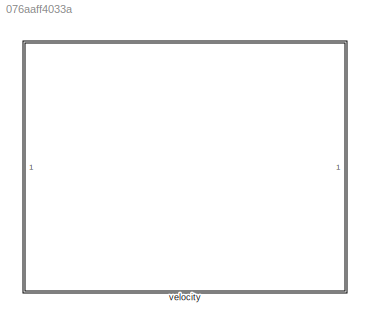
MODEL slx_076aaff4033a
KIND model
CONFIG AbsTol = auto
CONFIG EnableMultiTasking = off
CONFIG FixedStep = auto
CONFIG MaxStep = auto
CONFIG MinStep = auto
CONFIG RelTol = 1e-3
CONFIG SampleTimeConstraint = Unconstrained
CONFIG SolverName = VariableStepAuto
CONFIG StartTime = 0.0
CONFIG StopTime = 10.0
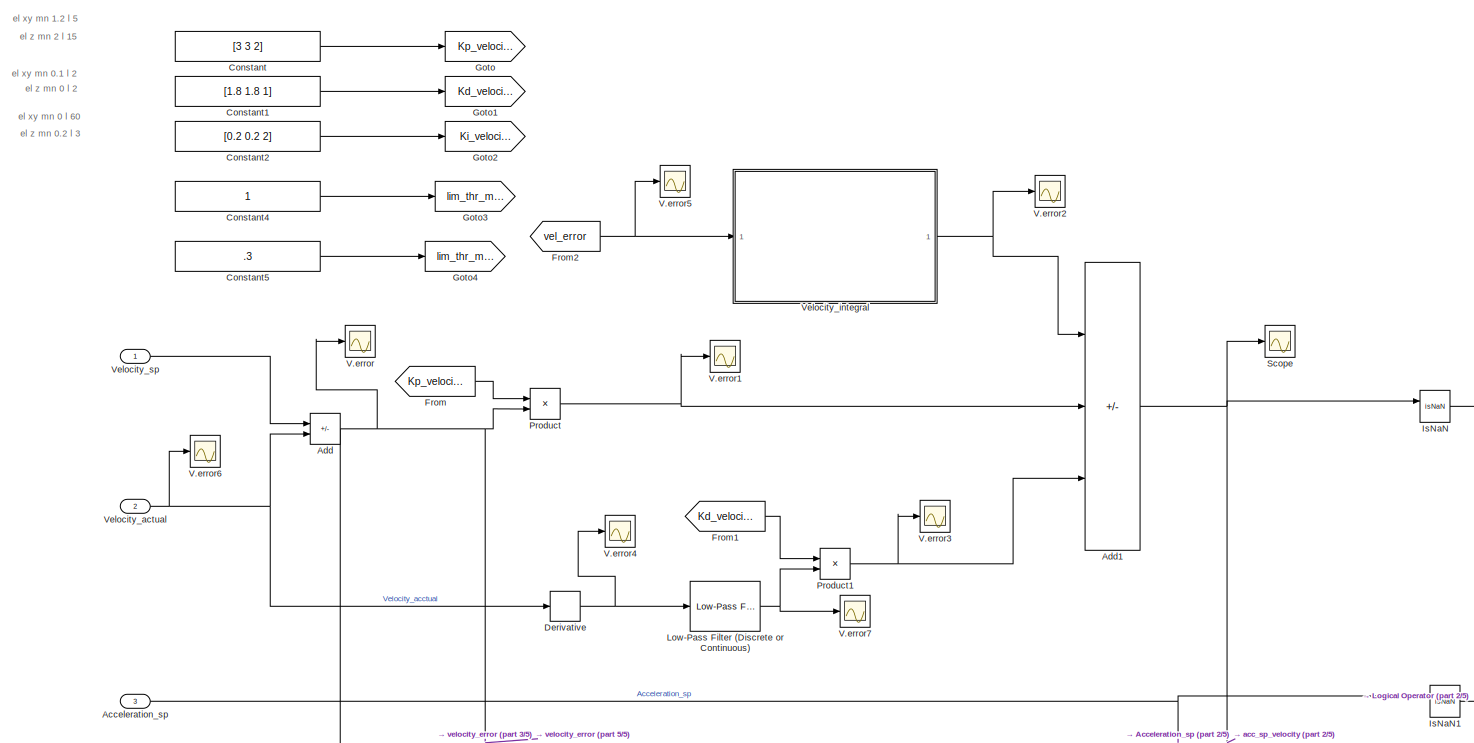
[diagram: velocity - part 1/5, top left region]
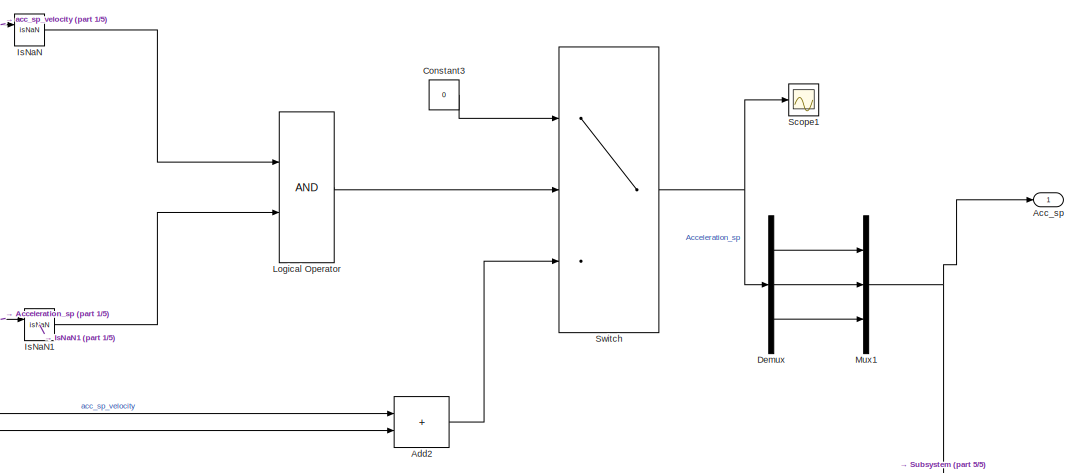
[diagram: velocity - part 2/5, middle right region]
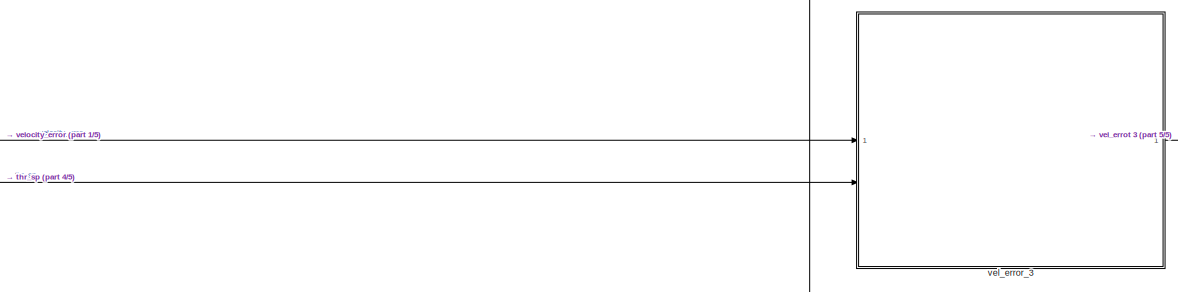
[diagram: velocity - part 3/5, central region]
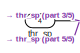
[diagram: velocity - part 4/5, bottom left region]
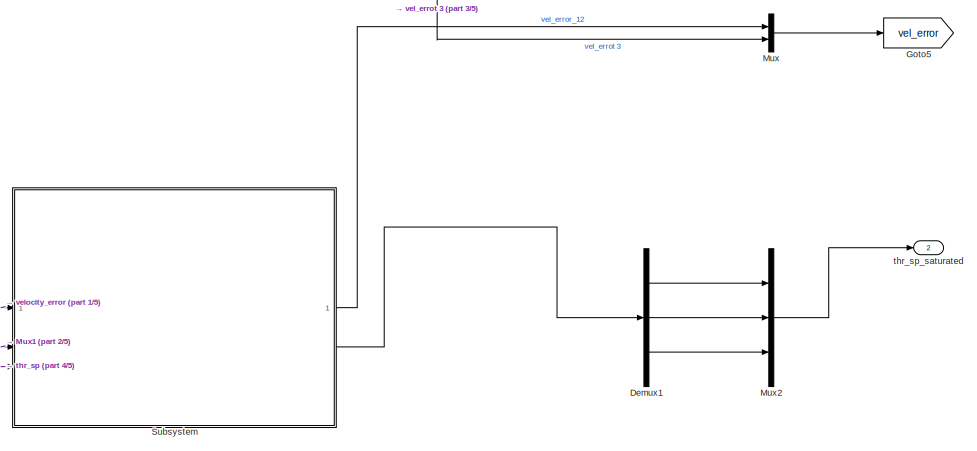
[diagram: velocity - part 5/5, bottom right region]
BLOCK [SubSystem] velocity
BLOCK [Outport] velocity/Acc_sp
BLOCK [Inport] velocity/Acceleration_sp
  Port = 3
BLOCK [Sum] velocity/Add
  IconShape = rectangular
  Inputs = +-
BLOCK [Sum] velocity/Add1
  IconShape = rectangular
  Inputs = ++-
BLOCK [Sum] velocity/Add2
  IconShape = rectangular
BLOCK [Constant] velocity/Constant
  Value = [3 3 2]
BLOCK [Constant] velocity/Constant1
  Value = [1.8 1.8 1]
BLOCK [Constant] velocity/Constant2
  Value = [0.2 0.2 2]
BLOCK [Constant] velocity/Constant3
  Value = 0
BLOCK [Constant] velocity/Constant4
BLOCK [Constant] velocity/Constant5
  Value = .3
BLOCK [Demux] velocity/Demux
  Outputs = 3
BLOCK [Demux] velocity/Demux1
  Outputs = 3
BLOCK [Derivative] velocity/Derivative
BLOCK [From] velocity/From
  GotoTag = Kp_velocity
  TagVisibility = global
BLOCK [From] velocity/From1
  GotoTag = Kd_velocity
  TagVisibility = global
BLOCK [From] velocity/From2
  GotoTag = vel_error
BLOCK [Goto] velocity/Goto
  GotoTag = Kp_velocity
  TagVisibility = global
BLOCK [Goto] velocity/Goto1
  GotoTag = Kd_velocity
  TagVisibility = global
BLOCK [Goto] velocity/Goto2
  GotoTag = Ki_velocity
  TagVisibility = global
BLOCK [Goto] velocity/Goto3
  GotoTag = lim_thr_max
  TagVisibility = global
BLOCK [Goto] velocity/Goto4
  GotoTag = lim_thr_margin
  TagVisibility = global
BLOCK [Goto] velocity/Goto5
  GotoTag = vel_error
BLOCK [RelationalOperator] velocity/IsNaN
  InputSameDT = off
  Operator = isNaN
  OutDataTypeStr = boolean
  RndMeth = Simplest
BLOCK [RelationalOperator] velocity/IsNaN1
  InputSameDT = off
  Operator = isNaN
  OutDataTypeStr = boolean
  RndMeth = Simplest
BLOCK [Logic] velocity/Logical Operator
  AllPortsSameDT = off
  OutDataTypeStr = boolean
BLOCK [Reference] velocity/Low-Pass Filter (Discrete or Continuous)  REF=eeGeneralControl/Low-Pass Filter
(Discrete or Continuous)
  SourceBlock = eeGeneralControl/Low-Pass Filter\n(Discrete or Continuous)
  SourceType = Low-Pass Filter (Discrete or Continuous)
BLOCK [Mux] velocity/Mux
  DisplayOption = bar
  Inputs = 2
BLOCK [Mux] velocity/Mux1
  DisplayOption = bar
  Inputs = 3
BLOCK [Mux] velocity/Mux2
  DisplayOption = bar
  Inputs = 3
BLOCK [Product] velocity/Product
BLOCK [Product] velocity/Product1
BLOCK [Scope] velocity/Scope
  Floating = off
  NumInputPorts = 1
  ScopeSpecificationString = Simulink.scopes.TimeScopeBlockCfg('CurrentConfiguration', extmgr.ConfigurationSet(extmgr.Configuration('Core','General UI',true),extmgr.Configuration('Core','Source UI',true),extmgr.Configuration('Sources','WiredSimulink',true,'DataLoggingVariableName','ScopeData7'),extmgr.Configuration('Visuals','Time Domain',true,'SerializedDisplays',{struct('MinYLimReal','-882.88599','MaxYLimReal','102.54289','...<+1430ch>
BLOCK [Scope] velocity/Scope1
  Floating = off
  NumInputPorts = 1
  ScopeSpecificationString = Simulink.scopes.TimeScopeBlockCfg('CurrentConfiguration', extmgr.ConfigurationSet(extmgr.Configuration('Core','General UI',true),extmgr.Configuration('Core','Source UI',true),extmgr.Configuration('Sources','WiredSimulink',true,'DataLoggingVariableName','ScopeData8'),extmgr.Configuration('Visuals','Time Domain',true,'SerializedDisplays',{struct('MinYLimReal','-882.88599','MaxYLimReal','102.54289','...<+1792ch>
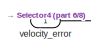
[diagram: velocity/Subsystem - part 1/8, top left region]
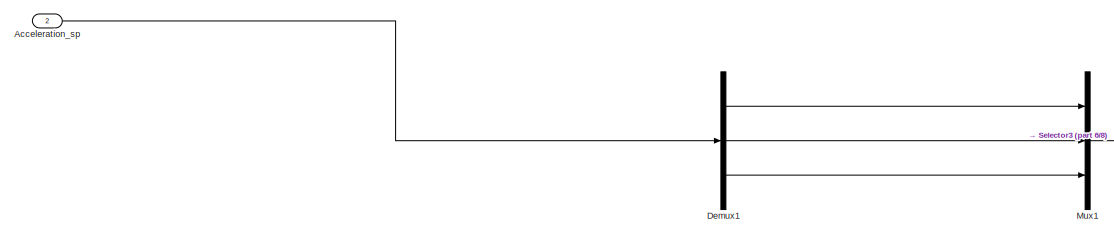
[diagram: velocity/Subsystem - part 2/8, top center region]
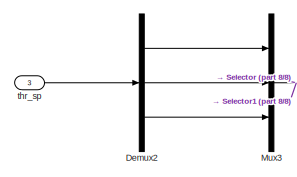
[diagram: velocity/Subsystem - part 3/8, middle left region]
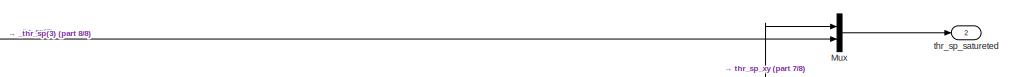
[diagram: velocity/Subsystem - part 4/8, middle right region]
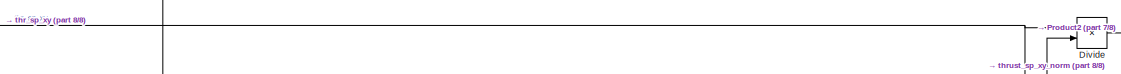
[diagram: velocity/Subsystem - part 5/8, central region]
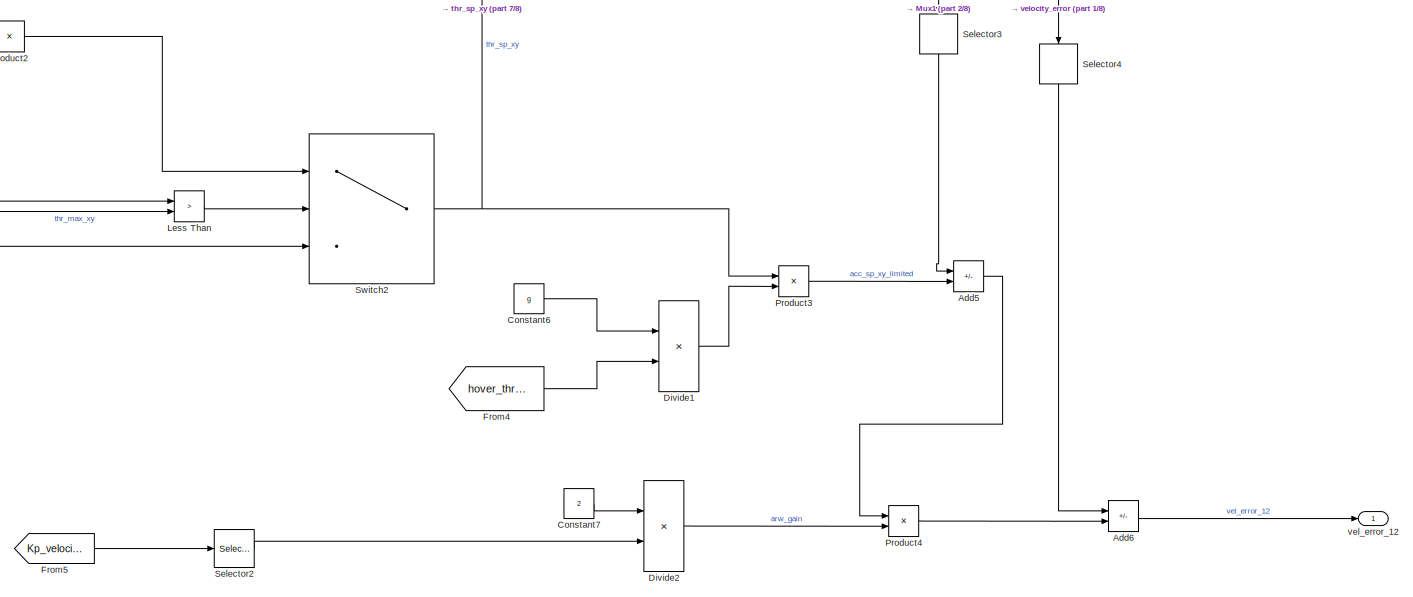
[diagram: velocity/Subsystem - part 6/8, bottom right region]
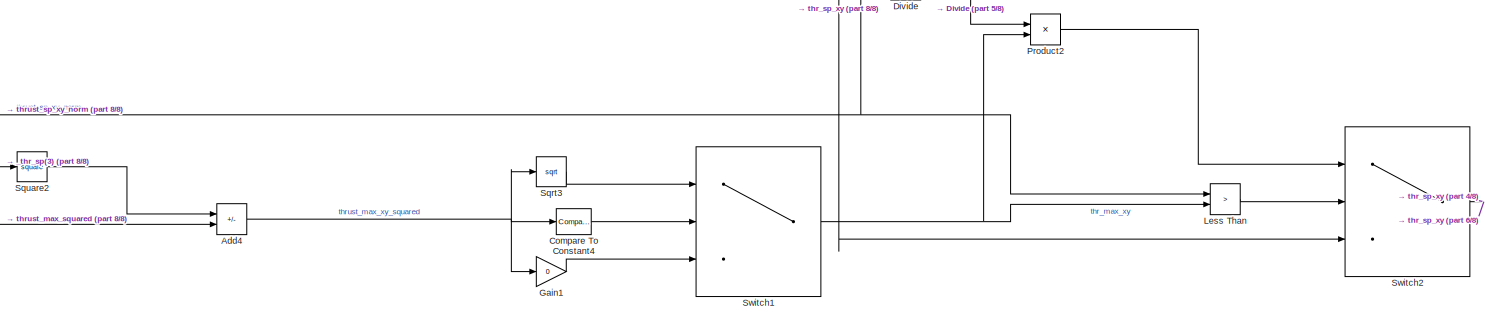
[diagram: velocity/Subsystem - part 7/8, bottom center region]
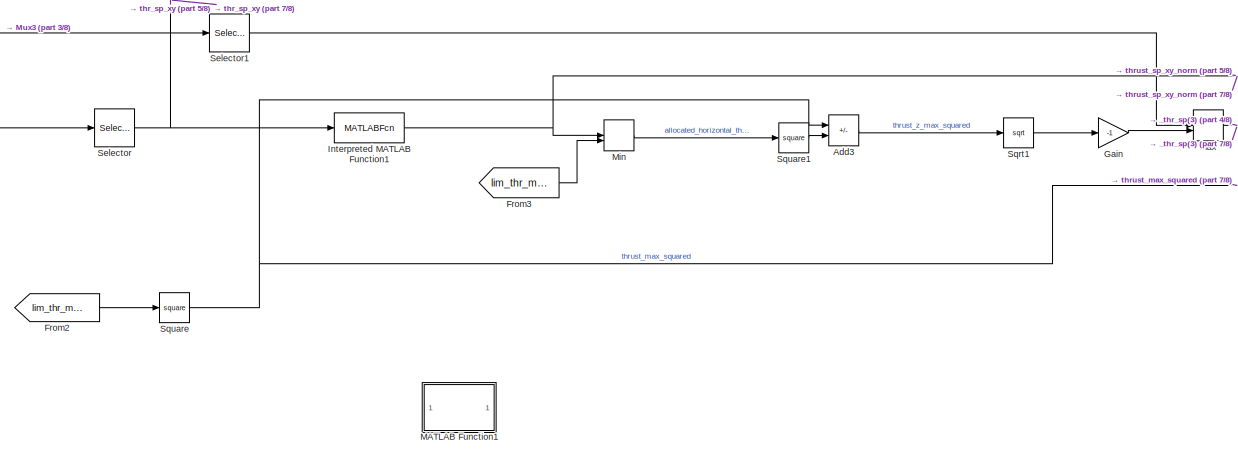
[diagram: velocity/Subsystem - part 8/8, bottom left region]
BLOCK [SubSystem] velocity/Subsystem
BLOCK [Inport] velocity/Subsystem/Acceleration_sp
  Port = 2
BLOCK [Sum] velocity/Subsystem/Add3
  IconShape = rectangular
  Inputs = +-
BLOCK [Sum] velocity/Subsystem/Add4
  IconShape = rectangular
  Inputs = -+
BLOCK [Sum] velocity/Subsystem/Add5
  IconShape = rectangular
  Inputs = +-
BLOCK [Sum] velocity/Subsystem/Add6
  IconShape = rectangular
  Inputs = +-
BLOCK [Reference] velocity/Subsystem/Compare To Constant4  REF=simulink/Logic and Bit
Operations/Compare
To Constant
  SourceBlock = simulink/Logic and Bit\nOperations/Compare\nTo Constant
  SourceType = Compare To Constant
BLOCK [Constant] velocity/Subsystem/Constant6
  Value = g
BLOCK [Constant] velocity/Subsystem/Constant7
  Value = 2
BLOCK [Demux] velocity/Subsystem/Demux1
  Outputs = 3
BLOCK [Demux] velocity/Subsystem/Demux2
  Outputs = 3
BLOCK [Product] velocity/Subsystem/Divide
  Inputs = */
BLOCK [Product] velocity/Subsystem/Divide1
  Inputs = */
BLOCK [Product] velocity/Subsystem/Divide2
  Inputs = */
BLOCK [From] velocity/Subsystem/From2
  GotoTag = lim_thr_max
  TagVisibility = global
BLOCK [From] velocity/Subsystem/From3
  GotoTag = lim_thr_margin
  TagVisibility = global
BLOCK [From] velocity/Subsystem/From4
  GotoTag = hover_thrust
  TagVisibility = global
BLOCK [From] velocity/Subsystem/From5
  GotoTag = Kp_velocity
  TagVisibility = global
BLOCK [Gain] velocity/Subsystem/Gain
  Gain = -1
BLOCK [Gain] velocity/Subsystem/Gain1
  Gain = 0
BLOCK [MATLABFcn] velocity/Subsystem/Interpreted MATLAB Function1
  MATLABFcn = norm
BLOCK [RelationalOperator] velocity/Subsystem/Less Than
  InputSameDT = off
  Operator = >
  OutDataTypeStr = boolean
  RndMeth = Simplest
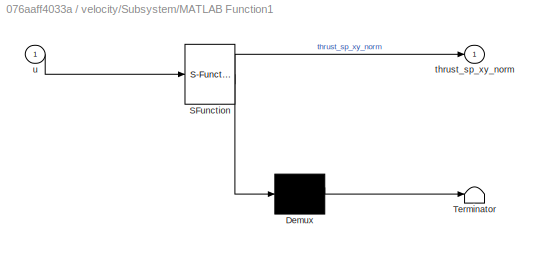
BLOCK [SubSystem] velocity/Subsystem/MATLAB Function1
  Commented = on
  ErrorFcn = Stateflow.Translate.translate
  PermitHierarchicalResolution = ExplicitOnly
  SFBlockType = MATLAB Function
  TreatAsAtomicUnit = on
BLOCK [Demux] velocity/Subsystem/MATLAB Function1/ Demux 
  Outputs = 1
BLOCK [S-Function] velocity/Subsystem/MATLAB Function1/ SFunction 
  EnableBusSupport = on
  FunctionName = sf_sfun
  PortCounts = [1 2]
  SFcnIsStateOwnerBlock = off
  SFunctionDeploymentMode = off
  Tag = Stateflow S-Function 19
BLOCK [Terminator] velocity/Subsystem/MATLAB Function1/ Terminator 
BLOCK [Outport] velocity/Subsystem/MATLAB Function1/thrust_sp_xy_norm
BLOCK [Inport] velocity/Subsystem/MATLAB Function1/u
BLOCK [MinMax] velocity/Subsystem/Max
  Function = max
  Inputs = 2
BLOCK [MinMax] velocity/Subsystem/Min
  Inputs = 2
BLOCK [Mux] velocity/Subsystem/Mux
  DisplayOption = bar
  Inputs = 2
BLOCK [Mux] velocity/Subsystem/Mux1
  DisplayOption = bar
  Inputs = 3
BLOCK [Mux] velocity/Subsystem/Mux3
  DisplayOption = bar
  Inputs = 3
BLOCK [Product] velocity/Subsystem/Product2
BLOCK [Product] velocity/Subsystem/Product3
BLOCK [Product] velocity/Subsystem/Product4
BLOCK [Selector] velocity/Subsystem/Selector
  IndexOptions = Index vector (dialog)
  Indices = [1 2]
  InputPortWidth = 3
  OutputSizes = 1
BLOCK [Selector] velocity/Subsystem/Selector1
  IndexOptions = Index vector (dialog)
  Indices = [3]
  InputPortWidth = 3
  OutputSizes = 1
BLOCK [Selector] velocity/Subsystem/Selector2
  IndexOptions = Index vector (dialog)
  Indices = [1]
  InputPortWidth = 3
  OutputSizes = 1
BLOCK [Selector] velocity/Subsystem/Selector3
  IndexOptions = Index vector (dialog)
  Indices = [1 2]
  InputPortWidth = 3
  NameLocation = left
  OutputSizes = 1
BLOCK [Selector] velocity/Subsystem/Selector4
  IndexOptions = Index vector (dialog)
  Indices = [1 2]
  InputPortWidth = 3
  NameLocation = left
  OutputSizes = 1
BLOCK [Sqrt] velocity/Subsystem/Sqrt1
BLOCK [Sqrt] velocity/Subsystem/Sqrt3
BLOCK [Math] velocity/Subsystem/Square
  Operator = square
BLOCK [Math] velocity/Subsystem/Square1
  Operator = square
BLOCK [Math] velocity/Subsystem/Square2
  Operator = square
BLOCK [Switch] velocity/Subsystem/Switch1
  Criteria = u2 ~= 0
  InputSameDT = off
  SaturateOnIntegerOverflow = off
  Threshold = ~0
BLOCK [Switch] velocity/Subsystem/Switch2
  Criteria = u2 ~= 0
  InputSameDT = off
  SaturateOnIntegerOverflow = off
  Threshold = ~0
BLOCK [Inport] velocity/Subsystem/thr_sp
  Port = 3
BLOCK [Outport] velocity/Subsystem/thr_sp_satureted
  Port = 2
BLOCK [Outport] velocity/Subsystem/vel_error_12
BLOCK [Inport] velocity/Subsystem/velocity_error
BLOCK [Switch] velocity/Switch
  Criteria = u2 ~= 0
  InputSameDT = off
  SaturateOnIntegerOverflow = off
BLOCK [Scope] velocity/V.error
  Floating = off
  NumInputPorts = 1
  ScopeSpecificationString = Simulink.scopes.TimeScopeBlockCfg('CurrentConfiguration', extmgr.ConfigurationSet(extmgr.Configuration('Core','General UI',true),extmgr.Configuration('Core','Source UI',true),extmgr.Configuration('Sources','WiredSimulink',true,'DataLoggingVariableName','ScopeData1'),extmgr.Configuration('Visuals','Time Domain',true,'SerializedDisplays',{struct('MinYLimReal','-885.83605','MaxYLimReal','98.42623','Y...<+1814ch>
BLOCK [Scope] velocity/V.error1
  Floating = off
  NumInputPorts = 1
  ScopeSpecificationString = Simulink.scopes.TimeScopeBlockCfg('CurrentConfiguration', extmgr.ConfigurationSet(extmgr.Configuration('Core','General UI',true),extmgr.Configuration('Core','Source UI',true),extmgr.Configuration('Sources','WiredSimulink',true,'DataLoggingVariableName','ScopeData2'),extmgr.Configuration('Visuals','Time Domain',true,'SerializedDisplays',{struct('MinYLimReal','-15.50424','MaxYLimReal','5.84529','YLa...<+1742ch>
BLOCK [Scope] velocity/V.error2
  Floating = off
  NumInputPorts = 1
  ScopeSpecificationString = Simulink.scopes.TimeScopeBlockCfg('CurrentConfiguration', extmgr.ConfigurationSet(extmgr.Configuration('Core','General UI',true),extmgr.Configuration('Core','Source UI',true),extmgr.Configuration('Sources','WiredSimulink',true,'DataLoggingVariableName','ScopeData3'),extmgr.Configuration('Visuals','Time Domain',true,'SerializedDisplays',{struct('MinYLimReal','-0.79336','MaxYLimReal','0.21438','YLab...<+1765ch>
BLOCK [Scope] velocity/V.error3
  Floating = off
  NumInputPorts = 1
  ScopeSpecificationString = Simulink.scopes.TimeScopeBlockCfg('CurrentConfiguration', extmgr.ConfigurationSet(extmgr.Configuration('Core','General UI',true),extmgr.Configuration('Core','Source UI',true),extmgr.Configuration('Sources','WiredSimulink',true,'DataLoggingVariableName','ScopeData4'),extmgr.Configuration('Visuals','Time Domain',true,'SerializedDisplays',{struct('MinYLimReal','-0.0000000000027','MaxYLimReal','0.0000...<+1820ch>
BLOCK [Scope] velocity/V.error4
  Floating = off
  NumInputPorts = 1
  ScopeSpecificationString = Simulink.scopes.TimeScopeBlockCfg('CurrentConfiguration', extmgr.ConfigurationSet(extmgr.Configuration('Core','General UI',true),extmgr.Configuration('Core','Source UI',true),extmgr.Configuration('Sources','WiredSimulink',true,'DataLoggingVariableName','ScopeData5'),extmgr.Configuration('Visuals','Time Domain',true,'SerializedDisplays',{struct('MinYLimReal','-0.98469','MaxYLimReal','8.86218','YLab...<+1742ch>
BLOCK [Scope] velocity/V.error5
  Floating = off
  NumInputPorts = 1
  ScopeSpecificationString = Simulink.scopes.TimeScopeBlockCfg('CurrentConfiguration', extmgr.ConfigurationSet(extmgr.Configuration('Core','General UI',true),extmgr.Configuration('Core','Source UI',true),extmgr.Configuration('Sources','WiredSimulink',true,'DataLoggingVariableName','ScopeData6'),extmgr.Configuration('Visuals','Time Domain',true),extmgr.Configuration('Tools','Plot Navigation',true),extmgr.Configuration('Tools',...<+40ch>
BLOCK [Scope] velocity/V.error6
  Floating = off
  NumInputPorts = 1
  ScopeSpecificationString = Simulink.scopes.TimeScopeBlockCfg('CurrentConfiguration', extmgr.ConfigurationSet(extmgr.Configuration('Core','General UI',true),extmgr.Configuration('Core','Source UI',true),extmgr.Configuration('Sources','WiredSimulink',true,'DataLoggingVariableName','ScopeData31'),extmgr.Configuration('Visuals','Time Domain',true,'SerializedDisplays',{struct('MinYLimReal','-1.96627','MaxYLimReal','17.69647','YL...<+3109ch>
BLOCK [Scope] velocity/V.error7
  Floating = off
  NumInputPorts = 1
  ScopeSpecificationString = Simulink.scopes.TimeScopeBlockCfg('CurrentConfiguration', extmgr.ConfigurationSet(extmgr.Configuration('Core','General UI',true),extmgr.Configuration('Core','Source UI',true),extmgr.Configuration('Sources','WiredSimulink',true,'DataLoggingVariableName','ScopeData32'),extmgr.Configuration('Visuals','Time Domain',true,'SerializedDisplays',{struct('MinYLimReal','-0.90721','MaxYLimReal','8.16489','YLa...<+1825ch>
BLOCK [Inport] velocity/Velocity_actual
  Port = 2
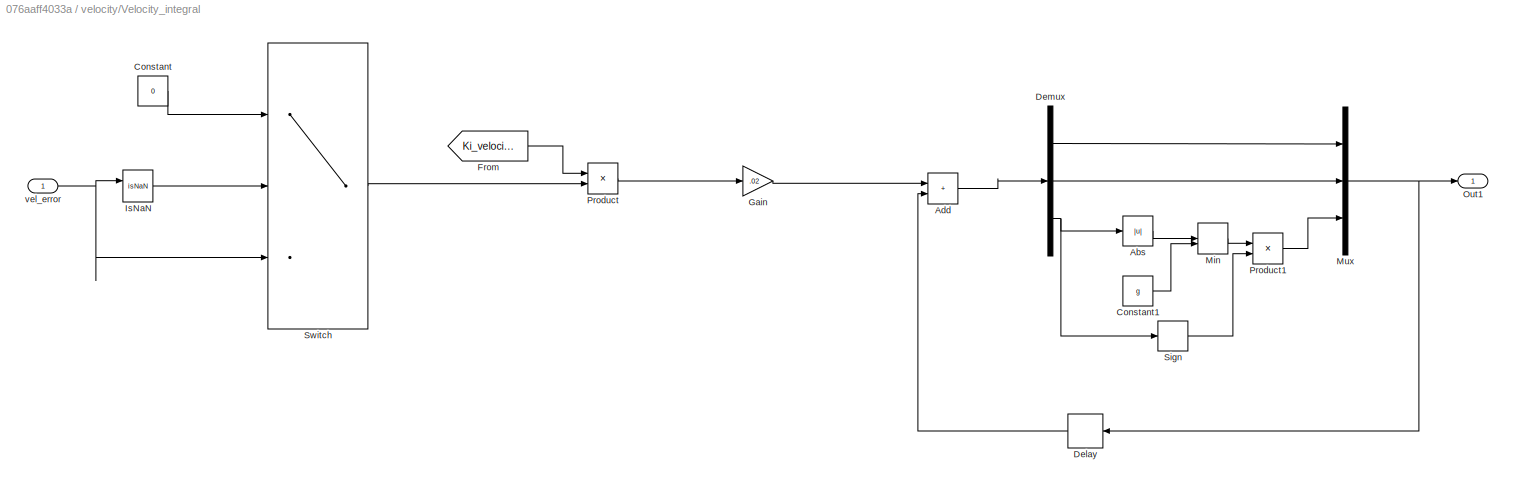
BLOCK [SubSystem] velocity/Velocity_integral
BLOCK [Abs] velocity/Velocity_integral/Abs
  SaturateOnIntegerOverflow = off
BLOCK [Sum] velocity/Velocity_integral/Add
  IconShape = rectangular
BLOCK [Constant] velocity/Velocity_integral/Constant
  Value = 0
BLOCK [Constant] velocity/Velocity_integral/Constant1
  Value = g
BLOCK [Delay] velocity/Velocity_integral/Delay
  DelayLength = 1
  InputPortMap = u0
  NameLocation = top
BLOCK [Demux] velocity/Velocity_integral/Demux
  Outputs = 3
BLOCK [From] velocity/Velocity_integral/From
  GotoTag = Ki_velocity
  TagVisibility = global
BLOCK [Gain] velocity/Velocity_integral/Gain
  Gain = .02
BLOCK [RelationalOperator] velocity/Velocity_integral/IsNaN
  InputSameDT = off
  Operator = isNaN
  OutDataTypeStr = boolean
  RndMeth = Simplest
BLOCK [MinMax] velocity/Velocity_integral/Min
  Inputs = 2
BLOCK [Mux] velocity/Velocity_integral/Mux
  DisplayOption = bar
  Inputs = 3
BLOCK [Outport] velocity/Velocity_integral/Out1
BLOCK [Product] velocity/Velocity_integral/Product
BLOCK [Product] velocity/Velocity_integral/Product1
BLOCK [Signum] velocity/Velocity_integral/Sign
BLOCK [Switch] velocity/Velocity_integral/Switch
  Criteria = u2 ~= 0
  InputSameDT = off
  SaturateOnIntegerOverflow = off
BLOCK [Inport] velocity/Velocity_integral/vel_error
BLOCK [Inport] velocity/Velocity_sp
BLOCK [Inport] velocity/thr_sp
  Port = 4
BLOCK [Outport] velocity/thr_sp_saturated
  Port = 2
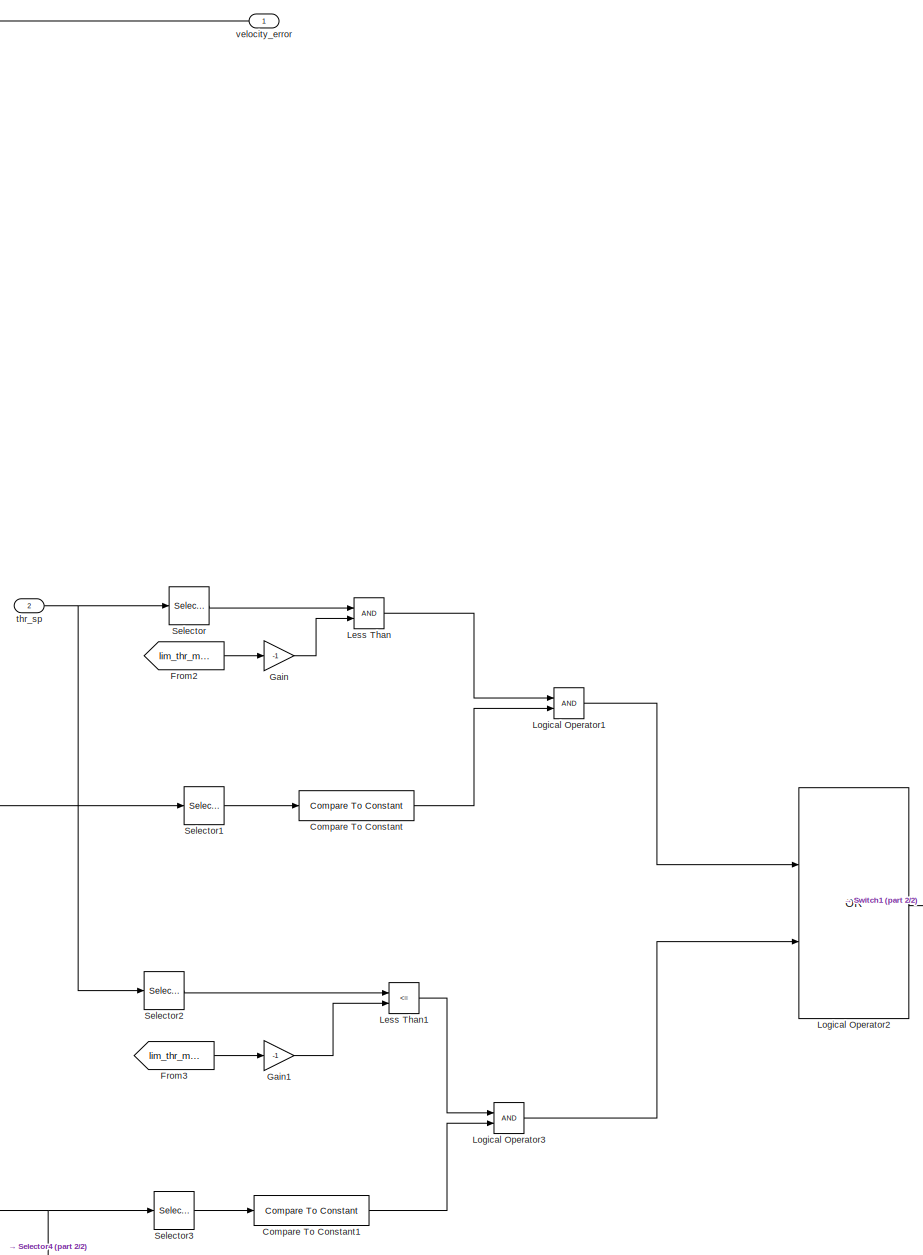
[diagram: velocity/vel_error_3 - part 1/2, left side, full height]
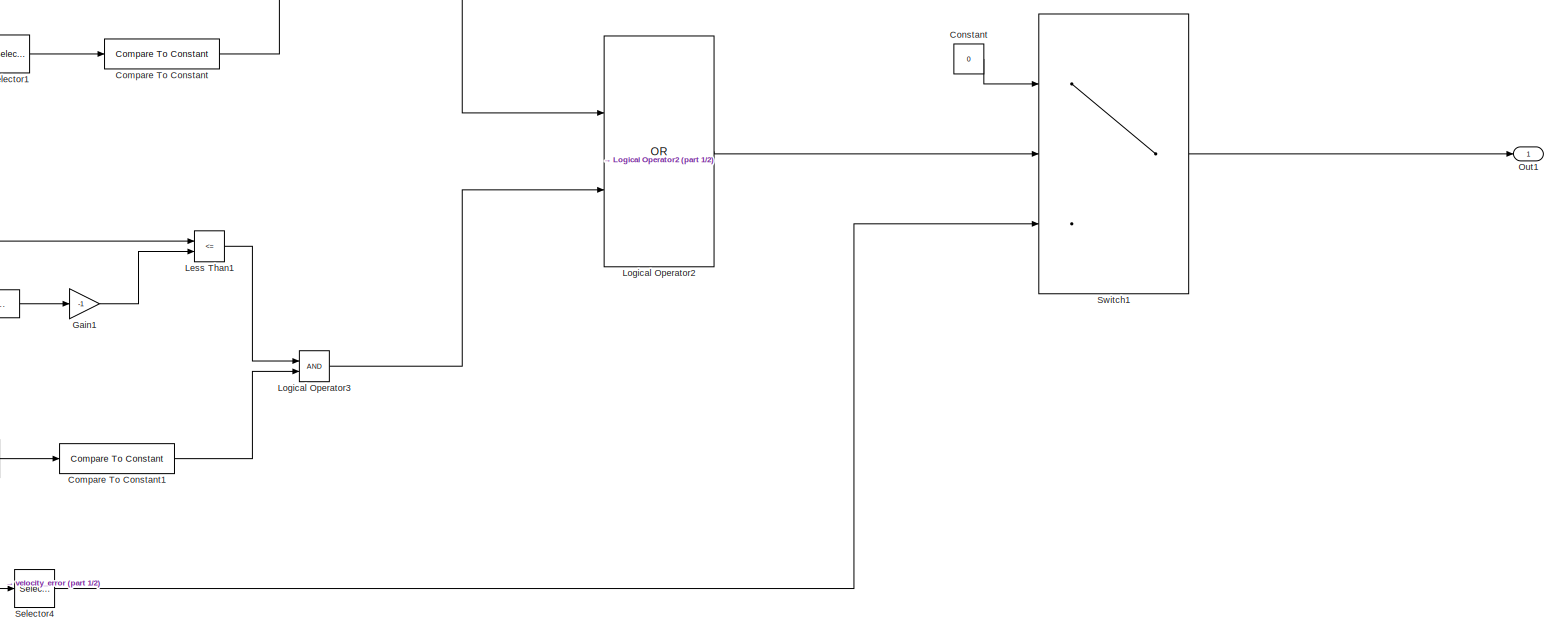
[diagram: velocity/vel_error_3 - part 2/2, full width, bottom band]
BLOCK [SubSystem] velocity/vel_error_3
BLOCK [Reference] velocity/vel_error_3/Compare To Constant  REF=simulink/Logic and Bit
Operations/Compare
To Constant
  SourceBlock = simulink/Logic and Bit\nOperations/Compare\nTo Constant
  SourceType = Compare To Constant
BLOCK [Reference] velocity/vel_error_3/Compare To Constant1  REF=simulink/Logic and Bit
Operations/Compare
To Constant
  SourceBlock = simulink/Logic and Bit\nOperations/Compare\nTo Constant
  SourceType = Compare To Constant
BLOCK [Constant] velocity/vel_error_3/Constant
  Value = 0
BLOCK [From] velocity/vel_error_3/From2
  GotoTag = lim_thr_min
  TagVisibility = global
BLOCK [From] velocity/vel_error_3/From3
  GotoTag = lim_thr_max
  TagVisibility = global
BLOCK [Gain] velocity/vel_error_3/Gain
  Gain = -1
BLOCK [Gain] velocity/vel_error_3/Gain1
  Gain = -1
BLOCK [RelationalOperator] velocity/vel_error_3/Less Than
  InputSameDT = off
  OutDataTypeStr = boolean
  RndMeth = Simplest
BLOCK [RelationalOperator] velocity/vel_error_3/Less Than1
  InputSameDT = off
  Operator = <=
  OutDataTypeStr = boolean
  RndMeth = Simplest
BLOCK [Logic] velocity/vel_error_3/Logical Operator1
  AllPortsSameDT = off
  OutDataTypeStr = boolean
BLOCK [Logic] velocity/vel_error_3/Logical Operator2
  AllPortsSameDT = off
  Operator = OR
  OutDataTypeStr = boolean
BLOCK [Logic] velocity/vel_error_3/Logical Operator3
  AllPortsSameDT = off
  OutDataTypeStr = boolean
BLOCK [Outport] velocity/vel_error_3/Out1
BLOCK [Selector] velocity/vel_error_3/Selector
  IndexOptions = Index vector (dialog)
  Indices = [3]
  InputPortWidth = 3
  OutputSizes = 1
BLOCK [Selector] velocity/vel_error_3/Selector1
  IndexOptions = Index vector (dialog)
  Indices = [3]
  InputPortWidth = 3
  OutputSizes = 1
BLOCK [Selector] velocity/vel_error_3/Selector2
  IndexOptions = Index vector (dialog)
  Indices = [3]
  InputPortWidth = 3
  OutputSizes = 1
BLOCK [Selector] velocity/vel_error_3/Selector3
  IndexOptions = Index vector (dialog)
  Indices = [3]
  InputPortWidth = 3
  OutputSizes = 1
BLOCK [Selector] velocity/vel_error_3/Selector4
  IndexOptions = Index vector (dialog)
  Indices = [3]
  InputPortWidth = 3
  OutputSizes = 1
BLOCK [Switch] velocity/vel_error_3/Switch1
  Criteria = u2 > Threshold
  InputSameDT = off
  SaturateOnIntegerOverflow = off
BLOCK [Inport] velocity/vel_error_3/thr_sp
  Port = 2
BLOCK [Inport] velocity/vel_error_3/velocity_error
ANNOTATION velocity: el xy mn 0 l 60
ANNOTATION velocity: el xy mn 0.1 l 2
ANNOTATION velocity: el xy mn 1.2 l 5
ANNOTATION velocity: el z mn 0 l 2
ANNOTATION velocity: el z mn 0.2 l 3
ANNOTATION velocity: el z mn 2 l 15
NET velocity/Acceleration_sp:1 -> velocity/Add2:2, velocity/IsNaN1:1
NET velocity/Add1:1 -> velocity/Add2:1, velocity/IsNaN:1, velocity/Scope:1
LINE velocity/Add2:1 -> velocity/Switch:3
NET velocity/Add:1 -> velocity/Product:2, velocity/Subsystem:1, velocity/V.error:1, velocity/vel_error_3:1
LINE velocity/Constant1:1 -> velocity/Goto1:1
LINE velocity/Constant2:1 -> velocity/Goto2:1
LINE velocity/Constant3:1 -> velocity/Switch:1
LINE velocity/Constant4:1 -> velocity/Goto3:1
LINE velocity/Constant5:1 -> velocity/Goto4:1
LINE velocity/Constant:1 -> velocity/Goto:1
LINE velocity/Demux1:1 -> velocity/Mux2:1
LINE velocity/Demux1:2 -> velocity/Mux2:2
LINE velocity/Demux1:3 -> velocity/Mux2:3
LINE velocity/Demux:1 -> velocity/Mux1:1
LINE velocity/Demux:2 -> velocity/Mux1:2
LINE velocity/Demux:3 -> velocity/Mux1:3
NET velocity/Derivative:1 -> velocity/Low-Pass Filter (Discrete or Continuous):1, velocity/V.error4:1
LINE velocity/From1:1 -> velocity/Product1:1
NET velocity/From2:1 -> velocity/V.error5:1, velocity/Velocity_integral:1
LINE velocity/From:1 -> velocity/Product:1
LINE velocity/IsNaN1:1 -> velocity/Logical Operator:2
LINE velocity/IsNaN:1 -> velocity/Logical Operator:1
LINE velocity/Logical Operator:1 -> velocity/Switch:2
NET velocity/Low-Pass Filter (Discrete or Continuous):1 -> velocity/Product1:2, velocity/V.error7:1
NET velocity/Mux1:1 -> velocity/Acc_sp:1, velocity/Subsystem:2
LINE velocity/Mux2:1 -> velocity/thr_sp_saturated:1
LINE velocity/Mux:1 -> velocity/Goto5:1
NET velocity/Product1:1 -> velocity/Add1:3, velocity/V.error3:1
NET velocity/Product:1 -> velocity/Add1:2, velocity/V.error1:1
LINE velocity/Subsystem/Acceleration_sp:1 -> velocity/Subsystem/Demux1:1
LINE velocity/Subsystem/Add3:1 -> velocity/Subsystem/Sqrt1:1
NET velocity/Subsystem/Add4:1 -> velocity/Subsystem/Compare To Constant4:1, velocity/Subsystem/Gain1:1, velocity/Subsystem/Sqrt3:1
LINE velocity/Subsystem/Add5:1 -> velocity/Subsystem/Product4:1
LINE velocity/Subsystem/Add6:1 -> velocity/Subsystem/vel_error_12:1
LINE velocity/Subsystem/Compare To Constant4:1 -> velocity/Subsystem/Switch1:2
LINE velocity/Subsystem/Constant6:1 -> velocity/Subsystem/Divide1:1
LINE velocity/Subsystem/Constant7:1 -> velocity/Subsystem/Divide2:1
LINE velocity/Subsystem/Demux1:1 -> velocity/Subsystem/Mux1:1
LINE velocity/Subsystem/Demux1:2 -> velocity/Subsystem/Mux1:2
LINE velocity/Subsystem/Demux1:3 -> velocity/Subsystem/Mux1:3
LINE velocity/Subsystem/Demux2:1 -> velocity/Subsystem/Mux3:1
LINE velocity/Subsystem/Demux2:2 -> velocity/Subsystem/Mux3:2
LINE velocity/Subsystem/Demux2:3 -> velocity/Subsystem/Mux3:3
LINE velocity/Subsystem/Divide1:1 -> velocity/Subsystem/Product3:2
LINE velocity/Subsystem/Divide2:1 -> velocity/Subsystem/Product4:2
LINE velocity/Subsystem/Divide:1 -> velocity/Subsystem/Product2:1
LINE velocity/Subsystem/From2:1 -> velocity/Subsystem/Square:1
LINE velocity/Subsystem/From3:1 -> velocity/Subsystem/Min:2
LINE velocity/Subsystem/From4:1 -> velocity/Subsystem/Divide1:2
LINE velocity/Subsystem/From5:1 -> velocity/Subsystem/Selector2:1
LINE velocity/Subsystem/Gain1:1 -> velocity/Subsystem/Switch1:3
LINE velocity/Subsystem/Gain:1 -> velocity/Subsystem/Max:2
NET velocity/Subsystem/Interpreted MATLAB Function1:1 -> velocity/Subsystem/Divide:2, velocity/Subsystem/Less Than:1, velocity/Subsystem/Min:1
LINE velocity/Subsystem/Less Than:1 -> velocity/Subsystem/Switch2:2
NET velocity/Subsystem/Max:1 -> velocity/Subsystem/Mux:2, velocity/Subsystem/Square2:1
LINE velocity/Subsystem/Min:1 -> velocity/Subsystem/Square1:1
LINE velocity/Subsystem/Mux1:1 -> velocity/Subsystem/Selector3:1
NET velocity/Subsystem/Mux3:1 -> velocity/Subsystem/Selector1:1, velocity/Subsystem/Selector:1
LINE velocity/Subsystem/Mux:1 -> velocity/Subsystem/thr_sp_satureted:1
LINE velocity/Subsystem/Product2:1 -> velocity/Subsystem/Switch2:1
LINE velocity/Subsystem/Product3:1 -> velocity/Subsystem/Add5:2
LINE velocity/Subsystem/Product4:1 -> velocity/Subsystem/Add6:2
LINE velocity/Subsystem/Selector1:1 -> velocity/Subsystem/Max:1
LINE velocity/Subsystem/Selector2:1 -> velocity/Subsystem/Divide2:2
LINE velocity/Subsystem/Selector3:1 -> velocity/Subsystem/Add5:1
LINE velocity/Subsystem/Selector4:1 -> velocity/Subsystem/Add6:1
NET velocity/Subsystem/Selector:1 -> velocity/Subsystem/Divide:1, velocity/Subsystem/Interpreted MATLAB Function1:1, velocity/Subsystem/Switch2:3
LINE velocity/Subsystem/Sqrt1:1 -> velocity/Subsystem/Gain:1
LINE velocity/Subsystem/Sqrt3:1 -> velocity/Subsystem/Switch1:1
LINE velocity/Subsystem/Square1:1 -> velocity/Subsystem/Add3:2
LINE velocity/Subsystem/Square2:1 -> velocity/Subsystem/Add4:1
NET velocity/Subsystem/Square:1 -> velocity/Subsystem/Add3:1, velocity/Subsystem/Add4:2
NET velocity/Subsystem/Switch1:1 -> velocity/Subsystem/Less Than:2, velocity/Subsystem/Product2:2
NET velocity/Subsystem/Switch2:1 -> velocity/Subsystem/Mux:1, velocity/Subsystem/Product3:1
LINE velocity/Subsystem/thr_sp:1 -> velocity/Subsystem/Demux2:1
LINE velocity/Subsystem/velocity_error:1 -> velocity/Subsystem/Selector4:1
LINE velocity/Subsystem:1 -> velocity/Mux:1
LINE velocity/Subsystem:2 -> velocity/Demux1:1
NET velocity/Switch:1 -> velocity/Demux:1, velocity/Scope1:1
NET velocity/Velocity_actual:1 -> velocity/Add:2, velocity/Derivative:1, velocity/V.error6:1
LINE velocity/Velocity_integral/Abs:1 -> velocity/Velocity_integral/Min:1
LINE velocity/Velocity_integral/Add:1 -> velocity/Velocity_integral/Demux:1
LINE velocity/Velocity_integral/Constant1:1 -> velocity/Velocity_integral/Min:2
LINE velocity/Velocity_integral/Constant:1 -> velocity/Velocity_integral/Switch:1
LINE velocity/Velocity_integral/Delay:1 -> velocity/Velocity_integral/Add:2
LINE velocity/Velocity_integral/Demux:1 -> velocity/Velocity_integral/Mux:1
LINE velocity/Velocity_integral/Demux:2 -> velocity/Velocity_integral/Mux:2
NET velocity/Velocity_integral/Demux:3 -> velocity/Velocity_integral/Abs:1, velocity/Velocity_integral/Sign:1
LINE velocity/Velocity_integral/From:1 -> velocity/Velocity_integral/Product:1
LINE velocity/Velocity_integral/Gain:1 -> velocity/Velocity_integral/Add:1
LINE velocity/Velocity_integral/IsNaN:1 -> velocity/Velocity_integral/Switch:2
LINE velocity/Velocity_integral/Min:1 -> velocity/Velocity_integral/Product1:1
NET velocity/Velocity_integral/Mux:1 -> velocity/Velocity_integral/Delay:1, velocity/Velocity_integral/Out1:1
LINE velocity/Velocity_integral/Product1:1 -> velocity/Velocity_integral/Mux:3
LINE velocity/Velocity_integral/Product:1 -> velocity/Velocity_integral/Gain:1
LINE velocity/Velocity_integral/Sign:1 -> velocity/Velocity_integral/Product1:2
LINE velocity/Velocity_integral/Switch:1 -> velocity/Velocity_integral/Product:2
NET velocity/Velocity_integral/vel_error:1 -> velocity/Velocity_integral/IsNaN:1, velocity/Velocity_integral/Switch:3
NET velocity/Velocity_integral:1 -> velocity/Add1:1, velocity/V.error2:1
LINE velocity/Velocity_sp:1 -> velocity/Add:1
NET velocity/thr_sp:1 -> velocity/Subsystem:3, velocity/vel_error_3:2
LINE velocity/vel_error_3/Compare To Constant1:1 -> velocity/vel_error_3/Logical Operator3:2
LINE velocity/vel_error_3/Compare To Constant:1 -> velocity/vel_error_3/Logical Operator1:2
LINE velocity/vel_error_3/Constant:1 -> velocity/vel_error_3/Switch1:1
LINE velocity/vel_error_3/From2:1 -> velocity/vel_error_3/Gain:1
LINE velocity/vel_error_3/From3:1 -> velocity/vel_error_3/Gain1:1
LINE velocity/vel_error_3/Gain1:1 -> velocity/vel_error_3/Less Than1:2
LINE velocity/vel_error_3/Gain:1 -> velocity/vel_error_3/Less Than:2
LINE velocity/vel_error_3/Less Than1:1 -> velocity/vel_error_3/Logical Operator3:1
LINE velocity/vel_error_3/Less Than:1 -> velocity/vel_error_3/Logical Operator1:1
LINE velocity/vel_error_3/Logical Operator1:1 -> velocity/vel_error_3/Logical Operator2:1
LINE velocity/vel_error_3/Logical Operator2:1 -> velocity/vel_error_3/Switch1:2
LINE velocity/vel_error_3/Logical Operator3:1 -> velocity/vel_error_3/Logical Operator2:2
LINE velocity/vel_error_3/Selector1:1 -> velocity/vel_error_3/Compare To Constant:1
LINE velocity/vel_error_3/Selector2:1 -> velocity/vel_error_3/Less Than1:1
LINE velocity/vel_error_3/Selector3:1 -> velocity/vel_error_3/Compare To Constant1:1
LINE velocity/vel_error_3/Selector4:1 -> velocity/vel_error_3/Switch1:3
LINE velocity/vel_error_3/Selector:1 -> velocity/vel_error_3/Less Than:1
LINE velocity/vel_error_3/Switch1:1 -> velocity/vel_error_3/Out1:1
NET velocity/vel_error_3/thr_sp:1 -> velocity/vel_error_3/Selector2:1, velocity/vel_error_3/Selector:1
NET velocity/vel_error_3/velocity_error:1 -> velocity/vel_error_3/Selector1:1, velocity/vel_error_3/Selector3:1, velocity/vel_error_3/Selector4:1
LINE velocity/vel_error_3:1 -> velocity/Mux:2
note: NET lines group one-source signal fan-out (src -> all destinations, sorted); 1:1 wires keep LINE
CHART velocity/Subsystem/MATLAB Function1 states=1 transitions=1
  STATE_LABEL 'eML_blk_kernel()'
  STATE_LABEL 'SCRIPT:\nfunction thrust_sp_xy_norm = fcn(u)\nthrust_sp_xy_norm=norm(u);\nend\n\n'
CHART  states=0 transitions=0
